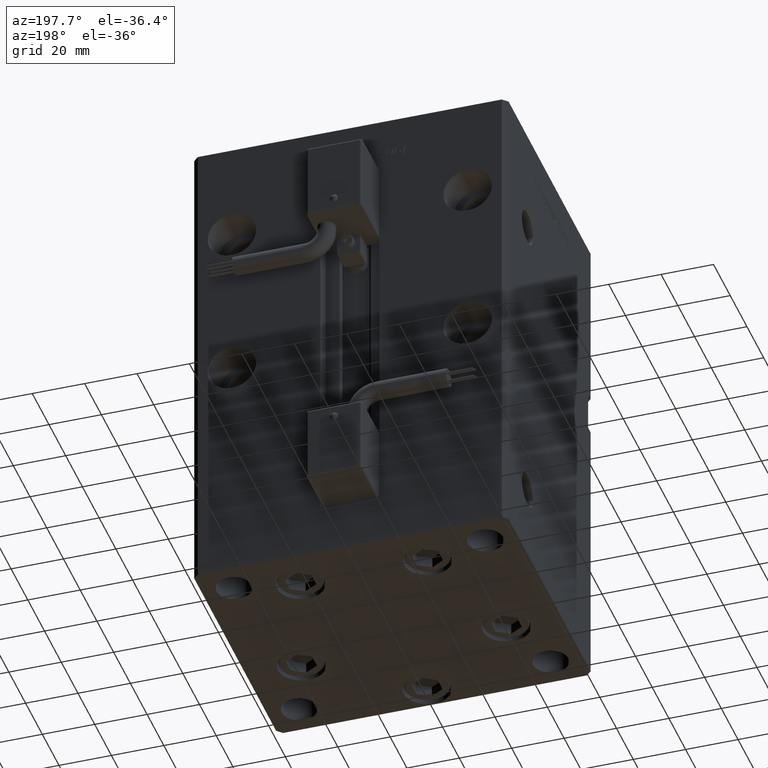
[diagram: clean part render]
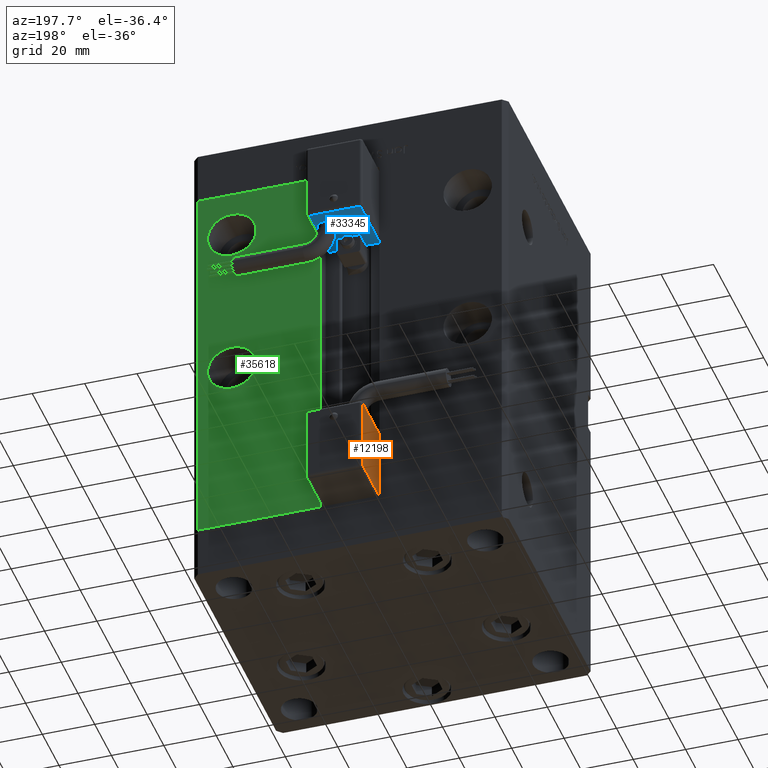
[diagram: same view with three faces highlighted in distinct colors, each labeled with its STEP entity id]
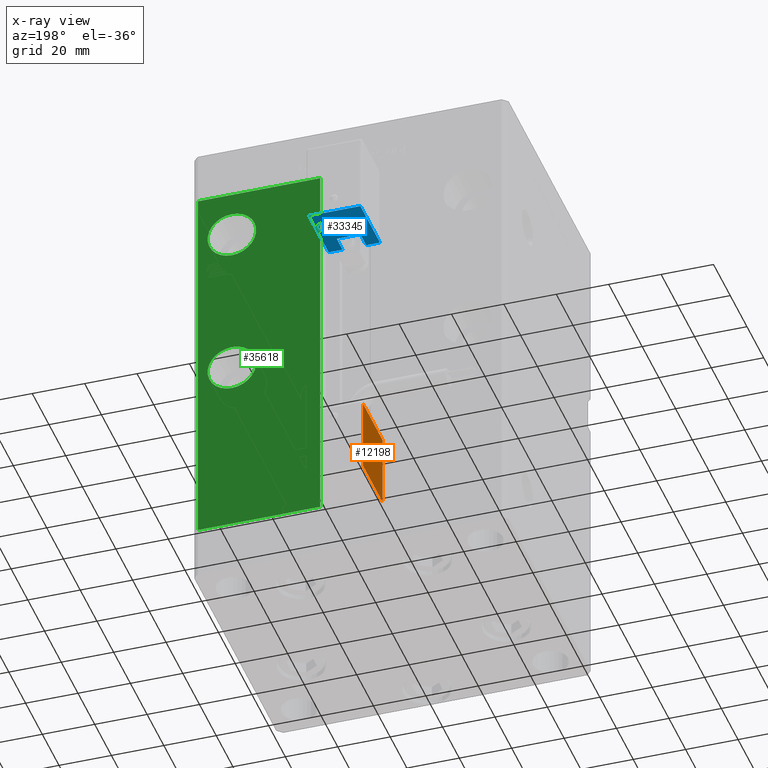
[diagram: x-ray of the same camera — body ghosted, the three highlighted faces saturated]
A machine part, auxiliary view with three faces highlighted in distinct colors.
The next image is the same camera in x-ray (body ghosted, the three faces saturated) — at least one of them is partly hidden behind the body in this view.
Their STEP definitions:

[orange] entity #12198 — the highlighted planar face has unit normal (-1, 0, 0).
#25 = DIRECTION ( 'NONE',  ( 1.000000000000000000, 4.930380657629929601E-32, 1.094764425253299406E-47 ) ) ;
#366 = ORIENTED_EDGE ( 'NONE', *, *, #5106, .T. ) ;
#1367 = CARTESIAN_POINT ( 'NONE',  ( 10.80000000000000071, 26.00000000000000000, -26.00000000000000000 ) ) ;
#2064 = LINE ( 'NONE', #19460, #23082 ) ;
#2787 = CARTESIAN_POINT ( 'NONE',  ( 10.80000000000000071, 50.50000000000000000, -25.00000000000000000 ) ) ;
#4636 = VECTOR ( 'NONE', #50659, 1000.000000000000000 ) ;
#5083 = DIRECTION ( 'NONE',  ( 3.108624468950000014E-32, -1.000000000000000000, -1.400000000000000069E-16 ) ) ;
#5106 = EDGE_CURVE ( 'NONE', #31155, #51736, #27395, .T. ) ;
#8317 = PLANE ( 'NONE',  #12965 ) ;
#8339 = EDGE_CURVE ( 'NONE', #16554, #31155, #11438, .T. ) ;
#11438 = LINE ( 'NONE', #45649, #42103 ) ;
#12198 = ADVANCED_FACE ( 'NONE', ( #34814 ), #8317, .T. ) ;
#12511 = EDGE_CURVE ( 'NONE', #51736, #25834, #52674, .T. ) ;
#12965 = AXIS2_PLACEMENT_3D ( 'NONE', #29717, #25, #56200 ) ;
#15134 = EDGE_CURVE ( 'NONE', #25834, #16554, #2064, .T. ) ;
#16554 = VERTEX_POINT ( 'NONE', #50431 ) ;
#19460 = CARTESIAN_POINT ( 'NONE',  ( 10.80000000000000071, 27.00000000000000000, -55.00000000000000000 ) ) ;
#22653 = ORIENTED_EDGE ( 'NONE', *, *, #15134, .T. ) ;
#23082 = VECTOR ( 'NONE', #32014, 1000.000000000000000 ) ;
#23126 = VECTOR ( 'NONE', #5083, 1000.000000000000000 ) ;
#25834 = VERTEX_POINT ( 'NONE', #44894 ) ;
#27395 = LINE ( 'NONE', #2787, #4636 ) ;
#29717 = CARTESIAN_POINT ( 'NONE',  ( 10.80000000000000071, 26.00000000000000000, -55.00000000000000000 ) ) ;
#31155 = VERTEX_POINT ( 'NONE', #54230 ) ;
#32014 = DIRECTION ( 'NONE',  ( 2.220446049250000002E-16, 1.200000000000000024E-16, -1.000000000000000000 ) ) ;
#34814 = FACE_OUTER_BOUND ( 'NONE', #51700, .T. ) ;
#35744 = CARTESIAN_POINT ( 'NONE',  ( 10.80000000000000071, 50.50000000000000000, -26.00000000000000000 ) ) ;
#42103 = VECTOR ( 'NONE', #42231, 1000.000000000000000 ) ;
#42231 = DIRECTION ( 'NONE',  ( -3.108624468950000014E-32, 1.000000000000000000, 1.400000000000000069E-16 ) ) ;
#44894 = CARTESIAN_POINT ( 'NONE',  ( 10.80000000000000071, 27.00000000000000000, -26.00000000000000000 ) ) ;
#45342 = ORIENTED_EDGE ( 'NONE', *, *, #12511, .T. ) ;
#45649 = CARTESIAN_POINT ( 'NONE',  ( 10.80000000000000071, 51.50000000000000000, -54.00000000000000000 ) ) ;
#45856 = ORIENTED_EDGE ( 'NONE', *, *, #8339, .T. ) ;
#50431 = CARTESIAN_POINT ( 'NONE',  ( 10.80000000000000071, 27.00000000000000000, -54.00000000000000000 ) ) ;
#50659 = DIRECTION ( 'NONE',  ( -2.220446049250000002E-16, -1.200000000000000024E-16, 1.000000000000000000 ) ) ;
#51700 = EDGE_LOOP ( 'NONE', ( #45342, #22653, #45856, #366 ) ) ;
#51736 = VERTEX_POINT ( 'NONE', #35744 ) ;
#52674 = LINE ( 'NONE', #1367, #23126 ) ;
#54230 = CARTESIAN_POINT ( 'NONE',  ( 10.80000000000000071, 50.50000000000000000, -54.00000000000000000 ) ) ;
#56200 = DIRECTION ( 'NONE',  ( 0.000000000000000000, -2.220446049250000002E-16, 1.000000000000000000 ) ) ;

[blue] entity #33345 — the highlighted planar face has unit normal (0, -0, 1).
#267 = FACE_OUTER_BOUND ( 'NONE', #48524, .T. ) ;
#834 = PLANE ( 'NONE',  #6306 ) ;
#1035 = CARTESIAN_POINT ( 'NONE',  ( -9.799999999999998934, 51.50000000000000000, -55.00000000000000000 ) ) ;
#1189 = ORIENTED_EDGE ( 'NONE', *, *, #53835, .T. ) ;
#2123 = VERTEX_POINT ( 'NONE', #14046 ) ;
#2902 = ORIENTED_EDGE ( 'NONE', *, *, #37947, .F. ) ;
#3118 = CARTESIAN_POINT ( 'NONE',  ( 9.799999999999998934, 26.00000000000000000, -55.00000000000000000 ) ) ;
#3386 = CARTESIAN_POINT ( 'NONE',  ( 4.500000000000000000, 27.00000000000000000, -55.00000000000000000 ) ) ;
#3943 = LINE ( 'NONE', #3118, #38628 ) ;
#4838 = VECTOR ( 'NONE', #52624, 1000.000000000000000 ) ;
#5116 = DIRECTION ( 'NONE',  ( 3.108624468950000014E-32, -1.400000000000000069E-16, 1.000000000000000000 ) ) ;
#5149 = DIRECTION ( 'NONE',  ( 0.000000000000000000, -1.000000000000000000, 0.000000000000000000 ) ) ;
#6306 = AXIS2_PLACEMENT_3D ( 'NONE', #44162, #5116, #35062 ) ;
#7496 = AXIS2_PLACEMENT_3D ( 'NONE', #13677, #31099, #5149 ) ;
#7690 = VECTOR ( 'NONE', #47172, 1000.000000000000000 ) ;
#8438 = ORIENTED_EDGE ( 'NONE', *, *, #9555, .F. ) ;
#8969 = LINE ( 'NONE', #40229, #14957 ) ;
#9030 = VERTEX_POINT ( 'NONE', #36902 ) ;
#9221 = CARTESIAN_POINT ( 'NONE',  ( 4.500000000000000000, 34.00000000000000000, -55.00000000000000000 ) ) ;
#9555 = EDGE_CURVE ( 'NONE', #2123, #54087, #43017, .T. ) ;
#10263 = CARTESIAN_POINT ( 'NONE',  ( -4.500000000000000000, 34.00000000000000000, -55.00000000000000000 ) ) ;
#11677 = VECTOR ( 'NONE', #43501, 1000.000000000000000 ) ;
#12163 = VECTOR ( 'NONE', #39572, 1000.000000000000000 ) ;
#12592 = CARTESIAN_POINT ( 'NONE',  ( -9.799999999999998934, 27.00000000000000000, -55.00000000000000000 ) ) ;
#13677 = CARTESIAN_POINT ( 'NONE',  ( 5.799999999999999822, 42.00000000000000000, -55.00000000000000000 ) ) ;
#13846 = LINE ( 'NONE', #1035, #4838 ) ;
#14046 = CARTESIAN_POINT ( 'NONE',  ( 5.799999999999999822, 38.50000000000000000, -55.00000000000000000 ) ) ;
#14957 = VECTOR ( 'NONE', #42898, 1000.000000000000000 ) ;
#15531 = EDGE_CURVE ( 'NONE', #34717, #51073, #25904, .T. ) ;
#16585 = EDGE_CURVE ( 'NONE', #51073, #26104, #3943, .T. ) ;
#16788 = CARTESIAN_POINT ( 'NONE',  ( 10.80000000000000071, 50.50000000000000000, -55.00000000000000000 ) ) ;
#17404 = EDGE_LOOP ( 'NONE', ( #8438, #2902 ) ) ;
#21268 = CARTESIAN_POINT ( 'NONE',  ( -9.799999999999998934, 50.50000000000000000, -55.00000000000000000 ) ) ;
#24011 = DIRECTION ( 'NONE',  ( 2.220446049250000002E-16, 1.400000000000000069E-16, -1.000000000000000000 ) ) ;
#25061 = CARTESIAN_POINT ( 'NONE',  ( 9.799999999999998934, 27.00000000000000000, -55.00000000000000000 ) ) ;
#25480 = VERTEX_POINT ( 'NONE', #27296 ) ;
#25904 = LINE ( 'NONE', #16788, #12163 ) ;
#26075 = LINE ( 'NONE', #40513, #7690 ) ;
#26104 = VERTEX_POINT ( 'NONE', #25061 ) ;
#26123 = CARTESIAN_POINT ( 'NONE',  ( 10.80000000000000071, 27.00000000000000000, -55.00000000000000000 ) ) ;
#27198 = LINE ( 'NONE', #9221, #45243 ) ;
#27296 = CARTESIAN_POINT ( 'NONE',  ( -4.500000000000000000, 34.00000000000000000, -55.00000000000000000 ) ) ;
#29379 = AXIS2_PLACEMENT_3D ( 'NONE', #46784, #24011, #33133 ) ;
#30874 = ORIENTED_EDGE ( 'NONE', *, *, #16585, .T. ) ;
#31099 = DIRECTION ( 'NONE',  ( 2.220446049250000002E-16, 1.400000000000000069E-16, -1.000000000000000000 ) ) ;
#31358 = VERTEX_POINT ( 'NONE', #51072 ) ;
#31904 = EDGE_CURVE ( 'NONE', #26104, #50102, #34953, .T. ) ;
#31918 = FACE_BOUND ( 'NONE', #17404, .T. ) ;
#33133 = DIRECTION ( 'NONE',  ( 0.000000000000000000, -1.000000000000000000, 0.000000000000000000 ) ) ;
#33311 = ORIENTED_EDGE ( 'NONE', *, *, #31904, .T. ) ;
#33345 = ADVANCED_FACE ( 'NONE', ( #267, #31918 ), #834, .F. ) ;
#34041 = CARTESIAN_POINT ( 'NONE',  ( 5.799999999999999822, 45.50000000000000711, -55.00000000000000000 ) ) ;
#34260 = CARTESIAN_POINT ( 'NONE',  ( 9.799999999999998934, 50.50000000000000000, -55.00000000000000000 ) ) ;
#34391 = ORIENTED_EDGE ( 'NONE', *, *, #55636, .T. ) ;
#34717 = VERTEX_POINT ( 'NONE', #21268 ) ;
#34953 = LINE ( 'NONE', #26123, #11677 ) ;
#35062 = DIRECTION ( 'NONE',  ( 1.000000000000000000, 2.220446049250000002E-16, 0.000000000000000000 ) ) ;
#36213 = VECTOR ( 'NONE', #53865, 1000.000000000000000 ) ;
#36902 = CARTESIAN_POINT ( 'NONE',  ( -4.500000000000000000, 27.00000000000000000, -55.00000000000000000 ) ) ;
#37493 = ORIENTED_EDGE ( 'NONE', *, *, #47213, .F. ) ;
#37947 = EDGE_CURVE ( 'NONE', #54087, #2123, #55718, .T. ) ;
#38628 = VECTOR ( 'NONE', #51542, 1000.000000000000000 ) ;
#39572 = DIRECTION ( 'NONE',  ( 1.000000000000000000, 0.000000000000000000, 2.220446049250000002E-16 ) ) ;
#40046 = EDGE_CURVE ( 'NONE', #46227, #34717, #13846, .T. ) ;
#40229 = CARTESIAN_POINT ( 'NONE',  ( 4.500000000000000000, 34.00000000000000000, -55.00000000000000000 ) ) ;
#40513 = CARTESIAN_POINT ( 'NONE',  ( 10.80000000000000071, 27.00000000000000000, -55.00000000000000000 ) ) ;
#42898 = DIRECTION ( 'NONE',  ( 2.664535259099999699E-32, -1.000000000000000000, -1.200000000000000024E-16 ) ) ;
#43017 = CIRCLE ( 'NONE', #29379, 3.500000000000003109 ) ;
#43501 = DIRECTION ( 'NONE',  ( -1.000000000000000000, 0.000000000000000000, -2.220446049250000002E-16 ) ) ;
#43997 = DIRECTION ( 'NONE',  ( -1.000000000000000000, 0.000000000000000000, -2.220446049250000002E-16 ) ) ;
#44162 = CARTESIAN_POINT ( 'NONE',  ( 10.80000000000000071, 51.50000000000000000, -55.00000000000000000 ) ) ;
#44830 = ORIENTED_EDGE ( 'NONE', *, *, #15531, .T. ) ;
#45243 = VECTOR ( 'NONE', #43997, 1000.000000000000000 ) ;
#45886 = LINE ( 'NONE', #10263, #36213 ) ;
#46227 = VERTEX_POINT ( 'NONE', #12592 ) ;
#46784 = CARTESIAN_POINT ( 'NONE',  ( 5.799999999999999822, 42.00000000000000000, -55.00000000000000000 ) ) ;
#47172 = DIRECTION ( 'NONE',  ( -1.000000000000000000, 0.000000000000000000, -2.220446049250000002E-16 ) ) ;
#47197 = EDGE_CURVE ( 'NONE', #9030, #46227, #26075, .T. ) ;
#47213 = EDGE_CURVE ( 'NONE', #31358, #50102, #8969, .T. ) ;
#48524 = EDGE_LOOP ( 'NONE', ( #34391, #51696, #55995, #44830, #30874, #33311, #37493, #1189 ) ) ;
#50102 = VERTEX_POINT ( 'NONE', #3386 ) ;
#51072 = CARTESIAN_POINT ( 'NONE',  ( 4.500000000000000000, 34.00000000000000000, -55.00000000000000000 ) ) ;
#51073 = VERTEX_POINT ( 'NONE', #34260 ) ;
#51542 = DIRECTION ( 'NONE',  ( 3.108624468950000014E-32, -1.000000000000000000, -1.400000000000000069E-16 ) ) ;
#51696 = ORIENTED_EDGE ( 'NONE', *, *, #47197, .T. ) ;
#52624 = DIRECTION ( 'NONE',  ( -3.108624468950000014E-32, 1.000000000000000000, 1.400000000000000069E-16 ) ) ;
#53835 = EDGE_CURVE ( 'NONE', #31358, #25480, #27198, .T. ) ;
#53865 = DIRECTION ( 'NONE',  ( 2.664535259099999699E-32, -1.000000000000000000, -1.200000000000000024E-16 ) ) ;
#54087 = VERTEX_POINT ( 'NONE', #34041 ) ;
#55636 = EDGE_CURVE ( 'NONE', #25480, #9030, #45886, .T. ) ;
#55718 = CIRCLE ( 'NONE', #7496, 3.500000000000003109 ) ;
#55995 = ORIENTED_EDGE ( 'NONE', *, *, #40046, .T. ) ;

[green] entity #35618 — the highlighted planar face has unit normal (0, -1, 0).
#688 = VERTEX_POINT ( 'NONE', #4267 ) ;
#971 = CARTESIAN_POINT ( 'NONE',  ( 45.00000000000000000, 51.00000000000000711, 139.7500000000000000 ) ) ;
#1095 = VECTOR ( 'NONE', #49635, 1000.000000000000000 ) ;
#2198 = AXIS2_PLACEMENT_3D ( 'NONE', #17524, #38924, #47741 ) ;
#4267 = CARTESIAN_POINT ( 'NONE',  ( 11.24999999999999112, 51.00000000000000711, 148.5000000000000000 ) ) ;
#4376 = VERTEX_POINT ( 'NONE', #31907 ) ;
#4458 = CARTESIAN_POINT ( 'NONE',  ( 11.24999999999999822, 51.00000000000000711, 0.000000000000000000 ) ) ;
#5361 = EDGE_CURVE ( 'NONE', #52872, #40778, #12847, .T. ) ;
#6895 = ORIENTED_EDGE ( 'NONE', *, *, #40697, .F. ) ;
#6930 = EDGE_CURVE ( 'NONE', #15044, #16651, #44769, .T. ) ;
#8335 = EDGE_CURVE ( 'NONE', #688, #4376, #36269, .T. ) ;
#11658 = FACE_BOUND ( 'NONE', #17862, .T. ) ;
#12064 = VERTEX_POINT ( 'NONE', #28035 ) ;
#12451 = LINE ( 'NONE', #4458, #42214 ) ;
#12847 = CIRCLE ( 'NONE', #34716, 9.250000000000008882 ) ;
#13081 = CIRCLE ( 'NONE', #2198, 9.250000000000008882 ) ;
#15044 = VERTEX_POINT ( 'NONE', #54228 ) ;
#15794 = CARTESIAN_POINT ( 'NONE',  ( -11.24999999999999822, 51.00000000000000711, 0.000000000000000000 ) ) ;
#15797 = AXIS2_PLACEMENT_3D ( 'NONE', #47779, #26133, #43515 ) ;
#15939 = PLANE ( 'NONE',  #16519 ) ;
#16519 = AXIS2_PLACEMENT_3D ( 'NONE', #50421, #55277, #41306 ) ;
#16651 = VERTEX_POINT ( 'NONE', #34175 ) ;
#16729 = DIRECTION ( 'NONE',  ( 0.000000000000000000, 1.000000000000000000, 0.000000000000000000 ) ) ;
#17524 = CARTESIAN_POINT ( 'NONE',  ( 45.00000000000000000, 51.00000000000000711, 70.50000000000000000 ) ) ;
#17862 = EDGE_LOOP ( 'NONE', ( #44476, #55359 ) ) ;
#17969 = EDGE_CURVE ( 'NONE', #4376, #12064, #28672, .T. ) ;
#18053 = EDGE_LOOP ( 'NONE', ( #31230, #34135, #35632, #43051 ) ) ;
#21814 = EDGE_LOOP ( 'NONE', ( #29076, #6895 ) ) ;
#22861 = DIRECTION ( 'NONE',  ( 0.000000000000000000, 1.000000000000000000, -0.000000000000000000 ) ) ;
#23496 = CARTESIAN_POINT ( 'NONE',  ( 45.00000000000000000, 51.00000000000000711, 121.2500000000000000 ) ) ;
#23648 = FACE_BOUND ( 'NONE', #21814, .T. ) ;
#25259 = VERTEX_POINT ( 'NONE', #33337 ) ;
#25292 = CARTESIAN_POINT ( 'NONE',  ( 45.00000000000000000, 51.00000000000000711, 130.5000000000000000 ) ) ;
#26133 = DIRECTION ( 'NONE',  ( 0.000000000000000000, 1.000000000000000000, 0.000000000000000000 ) ) ;
#27814 = DIRECTION ( 'NONE',  ( -0.000000000000000000, -0.000000000000000000, -1.000000000000000000 ) ) ;
#28035 = CARTESIAN_POINT ( 'NONE',  ( 57.99999999999999289, 51.00000000000000711, 0.000000000000000000 ) ) ;
#28672 = LINE ( 'NONE', #50297, #37784 ) ;
#29076 = ORIENTED_EDGE ( 'NONE', *, *, #5361, .F. ) ;
#31230 = ORIENTED_EDGE ( 'NONE', *, *, #33838, .T. ) ;
#31907 = CARTESIAN_POINT ( 'NONE',  ( 57.99999999999999289, 51.00000000000000711, 148.5000000000000000 ) ) ;
#33337 = CARTESIAN_POINT ( 'NONE',  ( 11.24999999999999822, 51.00000000000000711, 0.000000000000000000 ) ) ;
#33838 = EDGE_CURVE ( 'NONE', #12064, #25259, #50273, .T. ) ;
#34127 = DIRECTION ( 'NONE',  ( 0.000000000000000000, 0.000000000000000000, 1.000000000000000000 ) ) ;
#34135 = ORIENTED_EDGE ( 'NONE', *, *, #40701, .T. ) ;
#34175 = CARTESIAN_POINT ( 'NONE',  ( 45.00000000000000000, 51.00000000000000711, 61.25000000000000000 ) ) ;
#34716 = AXIS2_PLACEMENT_3D ( 'NONE', #25292, #16729, #34127 ) ;
#35618 = ADVANCED_FACE ( 'NONE', ( #11658, #23648, #37885 ), #15939, .F. ) ;
#35632 = ORIENTED_EDGE ( 'NONE', *, *, #8335, .T. ) ;
#36269 = LINE ( 'NONE', #36535, #1095 ) ;
#36535 = CARTESIAN_POINT ( 'NONE',  ( -11.24999999999999822, 51.00000000000000711, 148.5000000000000000 ) ) ;
#37784 = VECTOR ( 'NONE', #27814, 1000.000000000000000 ) ;
#37885 = FACE_OUTER_BOUND ( 'NONE', #18053, .T. ) ;
#38924 = DIRECTION ( 'NONE',  ( 0.000000000000000000, 1.000000000000000000, -0.000000000000000000 ) ) ;
#40697 = EDGE_CURVE ( 'NONE', #40778, #52872, #54035, .T. ) ;
#40701 = EDGE_CURVE ( 'NONE', #25259, #688, #12451, .T. ) ;
#40778 = VERTEX_POINT ( 'NONE', #23496 ) ;
#41306 = DIRECTION ( 'NONE',  ( 0.000000000000000000, -0.000000000000000000, -1.000000000000000000 ) ) ;
#42214 = VECTOR ( 'NONE', #43234, 1000.000000000000000 ) ;
#42451 = EDGE_CURVE ( 'NONE', #16651, #15044, #13081, .T. ) ;
#43051 = ORIENTED_EDGE ( 'NONE', *, *, #17969, .T. ) ;
#43234 = DIRECTION ( 'NONE',  ( -0.000000000000000000, -0.000000000000000000, 1.000000000000000000 ) ) ;
#43515 = DIRECTION ( 'NONE',  ( 0.000000000000000000, 0.000000000000000000, 1.000000000000000000 ) ) ;
#43946 = CARTESIAN_POINT ( 'NONE',  ( 45.00000000000000000, 51.00000000000000711, 70.50000000000000000 ) ) ;
#44476 = ORIENTED_EDGE ( 'NONE', *, *, #6930, .F. ) ;
#44769 = CIRCLE ( 'NONE', #49320, 9.250000000000008882 ) ;
#44803 = DIRECTION ( 'NONE',  ( 0.000000000000000000, 0.000000000000000000, -1.000000000000000000 ) ) ;
#47741 = DIRECTION ( 'NONE',  ( 0.000000000000000000, 0.000000000000000000, -1.000000000000000000 ) ) ;
#47779 = CARTESIAN_POINT ( 'NONE',  ( 45.00000000000000000, 51.00000000000000711, 130.5000000000000000 ) ) ;
#49320 = AXIS2_PLACEMENT_3D ( 'NONE', #43946, #22861, #44803 ) ;
#49635 = DIRECTION ( 'NONE',  ( 1.000000000000000000, 0.000000000000000000, 0.000000000000000000 ) ) ;
#50000 = VECTOR ( 'NONE', #51673, 1000.000000000000000 ) ;
#50273 = LINE ( 'NONE', #15794, #50000 ) ;
#50297 = CARTESIAN_POINT ( 'NONE',  ( 57.99999999999999289, 51.00000000000000711, 148.5000000000000000 ) ) ;
#50421 = CARTESIAN_POINT ( 'NONE',  ( -11.24999999999999822, 51.00000000000000711, 148.5000000000000000 ) ) ;
#51673 = DIRECTION ( 'NONE',  ( -1.000000000000000000, 0.000000000000000000, 0.000000000000000000 ) ) ;
#52872 = VERTEX_POINT ( 'NONE', #971 ) ;
#54035 = CIRCLE ( 'NONE', #15797, 9.250000000000008882 ) ;
#54228 = CARTESIAN_POINT ( 'NONE',  ( 45.00000000000000000, 51.00000000000000711, 79.75000000000001421 ) ) ;
#55277 = DIRECTION ( 'NONE',  ( 0.000000000000000000, -1.000000000000000000, 0.000000000000000000 ) ) ;
#55359 = ORIENTED_EDGE ( 'NONE', *, *, #42451, .F. ) ;